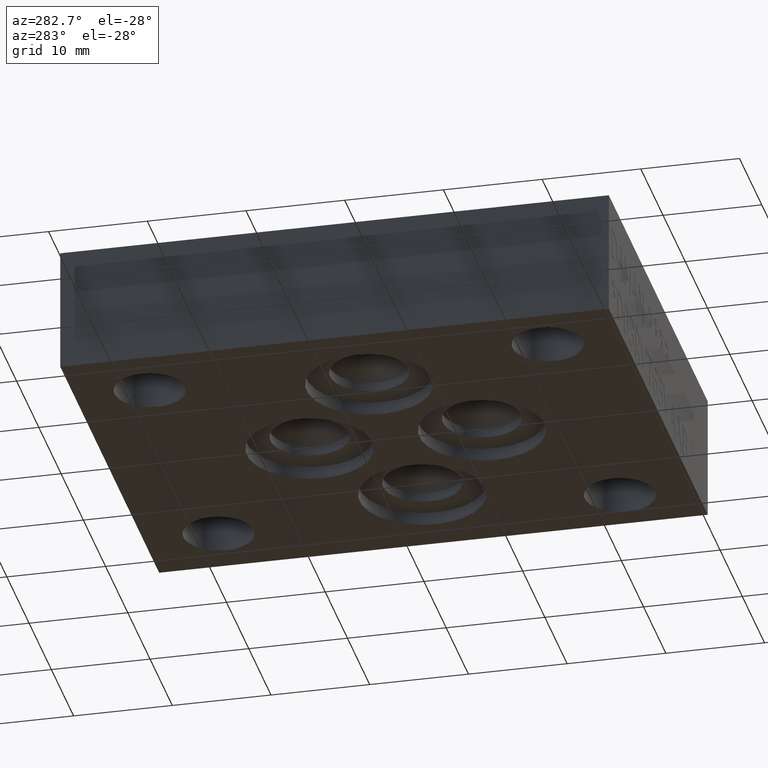
[diagram: clean part render]
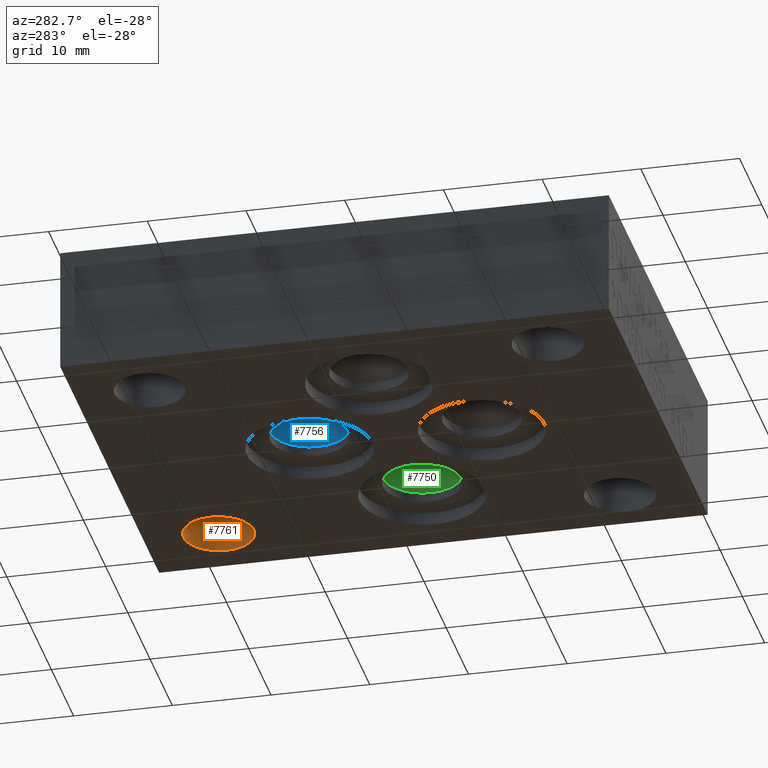
[diagram: same view with three faces highlighted in distinct colors, each labeled with its STEP entity id]
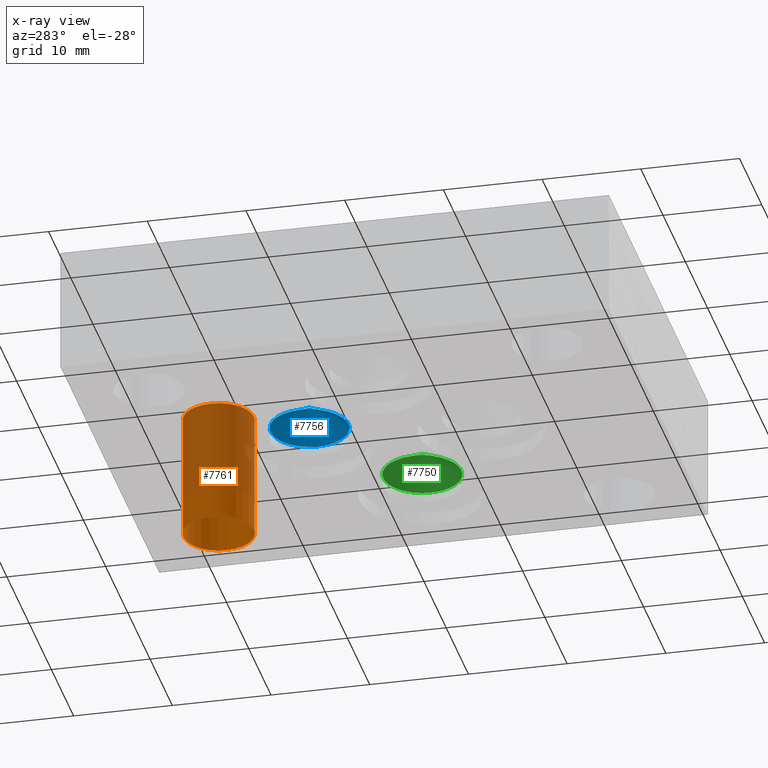
[diagram: x-ray of the same camera — body ghosted, the three highlighted faces saturated]
A machine part, auxiliary view with three faces highlighted in distinct colors.
The next image is the same camera in x-ray (body ghosted, the three faces saturated) — at least one of them is partly hidden behind the body in this view.
Their STEP definitions:

[orange] entity #7761 — the highlighted cylindrical surface (bore or boss wall) has radius 3.5687 mm, axis along (0, 0, 1).
#45=CIRCLE('',#8095,3.5687);
#46=CIRCLE('',#8096,3.5687);
#68=CYLINDRICAL_SURFACE('',#8094,3.5687);
#803=FACE_OUTER_BOUND('',#1232,.T.);
#1232=EDGE_LOOP('',(#6684,#6685,#6686,#6687));
#2066=LINE('',#12988,#2885);
#2885=VECTOR('',#9527,3.5687);
#3588=VERTEX_POINT('',#12985);
#3589=VERTEX_POINT('',#12987);
#4631=EDGE_CURVE('',#3588,#3588,#45,.T.);
#4632=EDGE_CURVE('',#3588,#3589,#2066,.T.);
#4633=EDGE_CURVE('',#3589,#3589,#46,.T.);
#6684=ORIENTED_EDGE('',*,*,#4631,.F.);
#6685=ORIENTED_EDGE('',*,*,#4632,.T.);
#6686=ORIENTED_EDGE('',*,*,#4633,.F.);
#6687=ORIENTED_EDGE('',*,*,#4632,.F.);
#7761=ADVANCED_FACE('',(#803),#68,.F.);
#8094=AXIS2_PLACEMENT_3D('',#12984,#9523,#9524);
#8095=AXIS2_PLACEMENT_3D('',#12986,#9525,#9526);
#8096=AXIS2_PLACEMENT_3D('',#12989,#9528,#9529);
#9523=DIRECTION('center_axis',(0.,0.,1.));
#9524=DIRECTION('ref_axis',(1.,0.,0.));
#9525=DIRECTION('center_axis',(0.,0.,-1.));
#9526=DIRECTION('ref_axis',(1.,0.,0.));
#9527=DIRECTION('',(0.,0.,-1.));
#9528=DIRECTION('center_axis',(0.,0.,1.));
#9529=DIRECTION('ref_axis',(1.,0.,0.));
#12984=CARTESIAN_POINT('Origin',(37.719,48.0314,-59.5889711853752));
#12985=CARTESIAN_POINT('',(34.1503,48.0314,12.7));
#12986=CARTESIAN_POINT('Origin',(37.719,48.0314,12.7));
#12987=CARTESIAN_POINT('',(34.1503,48.0314,-8.88178419700125E-15));
#12988=CARTESIAN_POINT('',(34.1503,48.0314,-59.5889711853752));
#12989=CARTESIAN_POINT('Origin',(37.719,48.0314,0.));

[blue] entity #7756 — the highlighted conical surface has half-angle 60 deg.
#17=CONICAL_SURFACE('',#8082,1.9812,1.0471975511966);
#38=CIRCLE('',#8083,3.9624);
#798=FACE_OUTER_BOUND('',#1227,.T.);
#1227=EDGE_LOOP('',(#6665,#6666,#6667));
#2061=LINE('',#12963,#2880);
#2880=VECTOR('',#9498,1.9812);
#3580=VERTEX_POINT('',#12960);
#3581=VERTEX_POINT('',#12962);
#4619=EDGE_CURVE('',#3580,#3580,#38,.T.);
#4620=EDGE_CURVE('',#3580,#3581,#2061,.T.);
#6665=ORIENTED_EDGE('',*,*,#4619,.T.);
#6666=ORIENTED_EDGE('',*,*,#4620,.T.);
#6667=ORIENTED_EDGE('',*,*,#4620,.F.);
#7756=ADVANCED_FACE('',(#798),#17,.F.);
#8082=AXIS2_PLACEMENT_3D('',#12959,#9494,#9495);
#8083=AXIS2_PLACEMENT_3D('',#12961,#9496,#9497);
#9494=DIRECTION('center_axis',(0.,0.,-1.));
#9495=DIRECTION('ref_axis',(1.,0.,0.));
#9496=DIRECTION('center_axis',(0.,0.,-1.));
#9497=DIRECTION('ref_axis',(1.,0.,0.));
#9498=DIRECTION('',(0.866025403784438,-1.06057523872491E-16,0.5));
#12959=CARTESIAN_POINT('Origin',(22.225,35.3314,3.43153635331849));
#12960=CARTESIAN_POINT('',(18.2626,35.3314,2.28769));
#12961=CARTESIAN_POINT('Origin',(22.225,35.3314,2.28769));
#12962=CARTESIAN_POINT('',(22.225,35.3314,4.57538270663697));
#12963=CARTESIAN_POINT('',(20.2438,35.3314,3.43153635331849));

[green] entity #7750 — the highlighted conical surface has half-angle 60 deg.
#14=CONICAL_SURFACE('',#8073,1.9812,1.0471975511966);
#35=CIRCLE('',#8074,3.9624);
#792=FACE_OUTER_BOUND('',#1221,.T.);
#1221=EDGE_LOOP('',(#6644,#6645,#6646));
#2055=LINE('',#12942,#2874);
#2874=VECTOR('',#9474,1.9812);
#3574=VERTEX_POINT('',#12939);
#3575=VERTEX_POINT('',#12941);
#4610=EDGE_CURVE('',#3574,#3574,#35,.T.);
#4611=EDGE_CURVE('',#3574,#3575,#2055,.T.);
#6644=ORIENTED_EDGE('',*,*,#4610,.T.);
#6645=ORIENTED_EDGE('',*,*,#4611,.T.);
#6646=ORIENTED_EDGE('',*,*,#4611,.F.);
#7750=ADVANCED_FACE('',(#792),#14,.F.);
#8073=AXIS2_PLACEMENT_3D('',#12938,#9470,#9471);
#8074=AXIS2_PLACEMENT_3D('',#12940,#9472,#9473);
#9470=DIRECTION('center_axis',(0.,0.,-1.));
#9471=DIRECTION('ref_axis',(1.,0.,0.));
#9472=DIRECTION('center_axis',(0.,0.,-1.));
#9473=DIRECTION('ref_axis',(1.,0.,0.));
#9474=DIRECTION('',(0.866025403784438,-1.06057523872491E-16,0.5));
#12938=CARTESIAN_POINT('Origin',(34.1376,26.5938,3.43153635331849));
#12939=CARTESIAN_POINT('',(30.1752,26.5938,2.28769));
#12940=CARTESIAN_POINT('Origin',(34.1376,26.5938,2.28769));
#12941=CARTESIAN_POINT('',(34.1376,26.5938,4.57538270663697));
#12942=CARTESIAN_POINT('',(32.1564,26.5938,3.43153635331849));